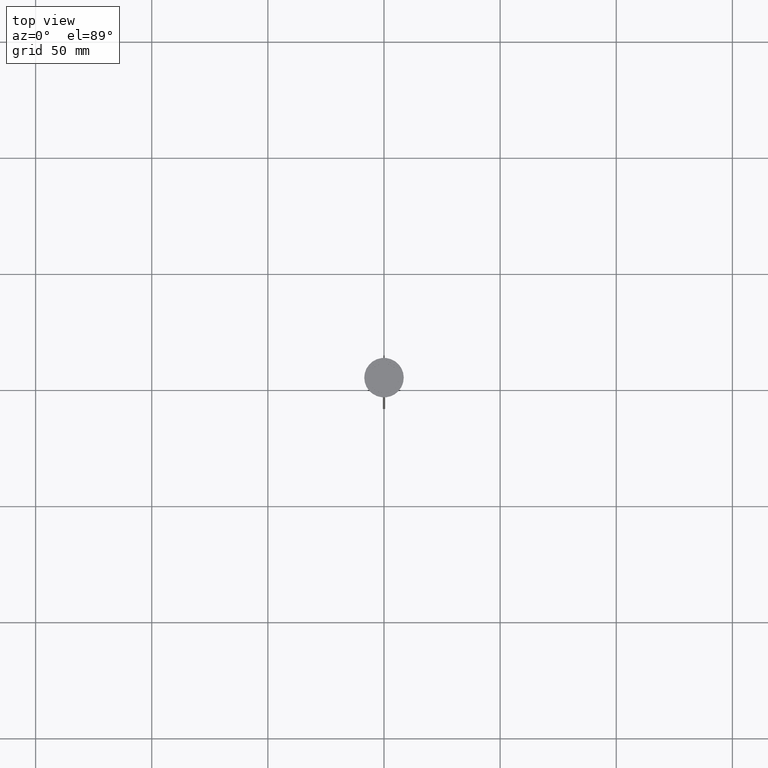
[diagram: clean part render]
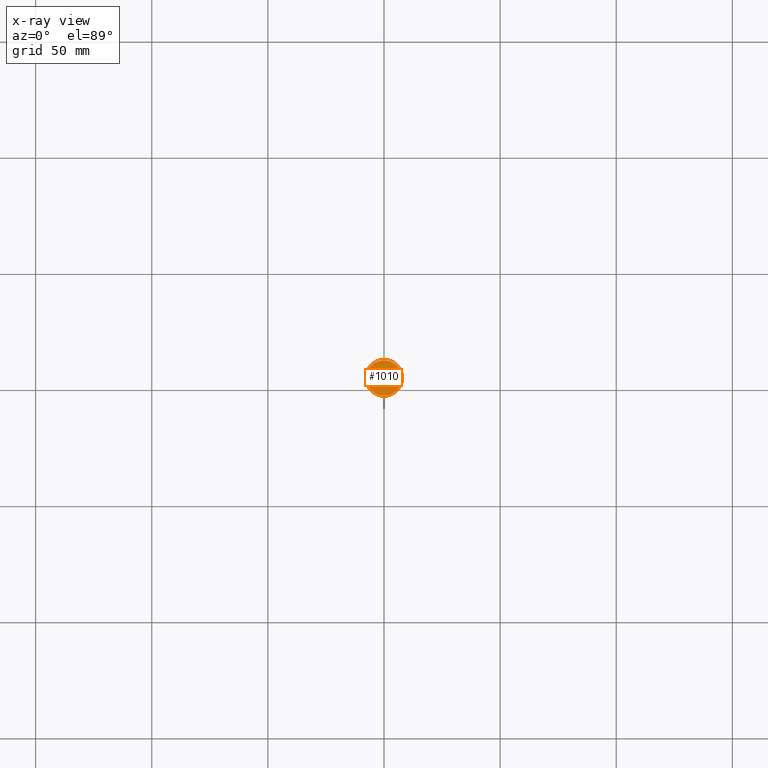
[diagram: x-ray — body ghosted, one internal face saturated and labeled with its STEP entity id]
A machine part, top view, then the same camera in x-ray: the body is ghosted and one INTERNAL B-rep face — a face not visible from any outside direction — is saturated and labeled: STEP entity #1010.
In plain terms, the highlighted planar face has unit normal (0, 0, -1).
Its self-contained STEP definition (entity closure, byte-faithful):
#5 = CARTESIAN_POINT ( 'NONE',  ( 0.000000000000000000, 0.000000000000000000, -12.00000000000000000 ) ) ;
#63 = EDGE_LOOP ( 'NONE', ( #645, #2272 ) ) ;
#184 = CARTESIAN_POINT ( 'NONE',  ( 0.000000000000000000, 0.000000000000000000, -12.00000000000000000 ) ) ;
#201 = DIRECTION ( 'NONE',  ( -1.000000000000000000, 0.000000000000000000, 0.000000000000000000 ) ) ;
#246 = AXIS2_PLACEMENT_3D ( 'NONE', #2063, #1453, #1285 ) ;
#287 = EDGE_CURVE ( 'NONE', #866, #1144, #2283, .T. ) ;
#645 = ORIENTED_EDGE ( 'NONE', *, *, #287, .T. ) ;
#743 = FACE_OUTER_BOUND ( 'NONE', #63, .T. ) ;
#758 = CIRCLE ( 'NONE', #2403, 7.700000000000001954 ) ;
#866 = VERTEX_POINT ( 'NONE', #1411 ) ;
#954 = DIRECTION ( 'NONE',  ( -1.000000000000000000, 0.000000000000000000, -0.000000000000000000 ) ) ;
#1010 = ADVANCED_FACE ( 'NONE', ( #743 ), #1089, .F. ) ;
#1089 = PLANE ( 'NONE',  #1550 ) ;
#1144 = VERTEX_POINT ( 'NONE', #2277 ) ;
#1285 = DIRECTION ( 'NONE',  ( -1.000000000000000000, 0.000000000000000000, 0.000000000000000000 ) ) ;
#1411 = CARTESIAN_POINT ( 'NONE',  ( -7.700000000000001954, 0.000000000000000000, -12.00000000000000000 ) ) ;
#1453 = DIRECTION ( 'NONE',  ( -0.000000000000000000, -0.000000000000000000, 1.000000000000000000 ) ) ;
#1545 = DIRECTION ( 'NONE',  ( -0.000000000000000000, -0.000000000000000000, 1.000000000000000000 ) ) ;
#1550 = AXIS2_PLACEMENT_3D ( 'NONE', #184, #1677, #954 ) ;
#1677 = DIRECTION ( 'NONE',  ( 0.000000000000000000, 0.000000000000000000, -1.000000000000000000 ) ) ;
#1754 = EDGE_CURVE ( 'NONE', #1144, #866, #758, .T. ) ;
#2063 = CARTESIAN_POINT ( 'NONE',  ( 0.000000000000000000, 0.000000000000000000, -12.00000000000000000 ) ) ;
#2272 = ORIENTED_EDGE ( 'NONE', *, *, #1754, .T. ) ;
#2277 = CARTESIAN_POINT ( 'NONE',  ( 7.700000000000001954, 9.613477373306725302E-16, -12.00000000000000000 ) ) ;
#2283 = CIRCLE ( 'NONE', #246, 7.700000000000001954 ) ;
#2403 = AXIS2_PLACEMENT_3D ( 'NONE', #5, #1545, #201 ) ;